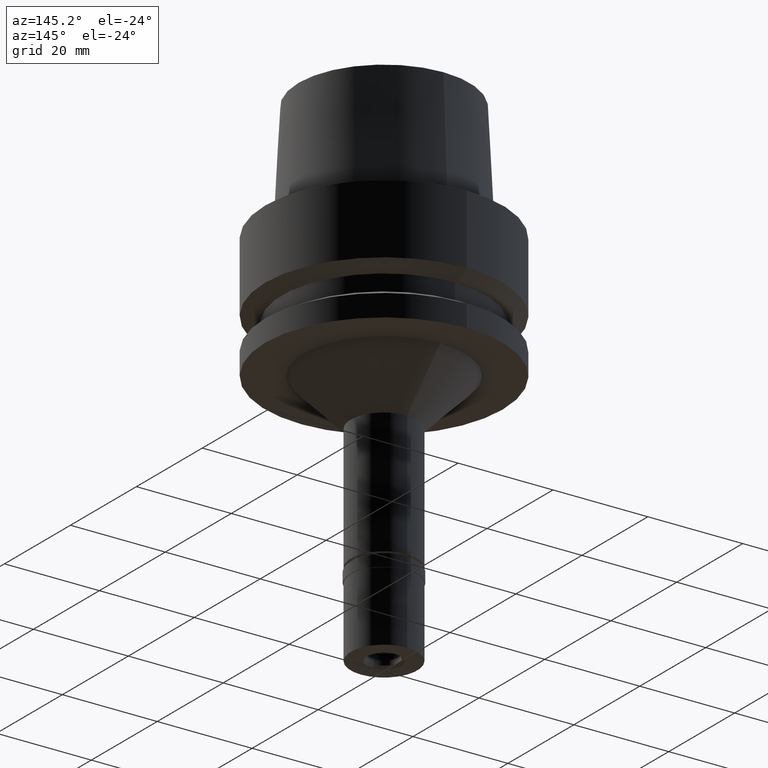
[diagram: clean part render]
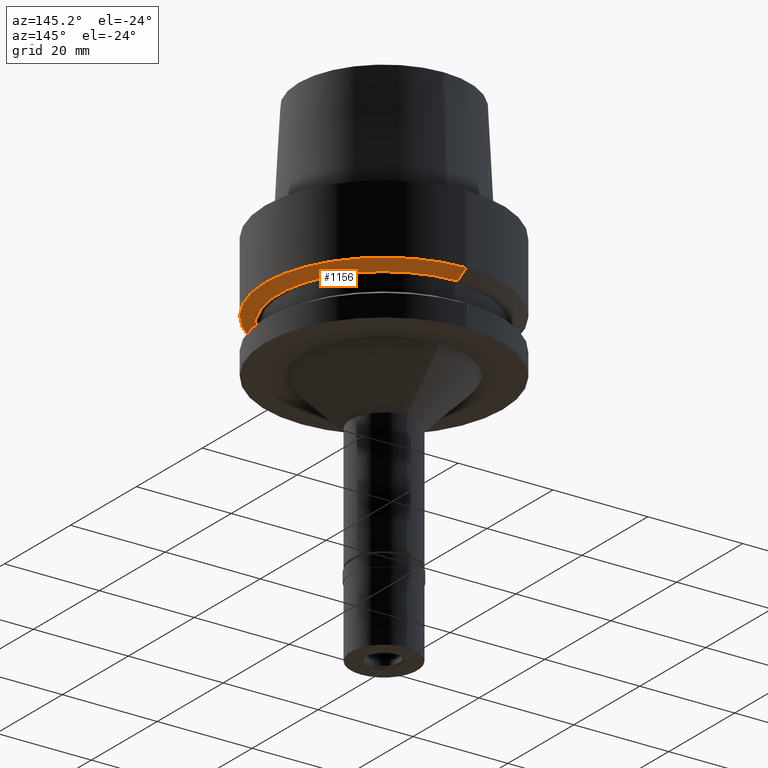
[diagram: same view with one face highlighted and labeled with its STEP entity id]
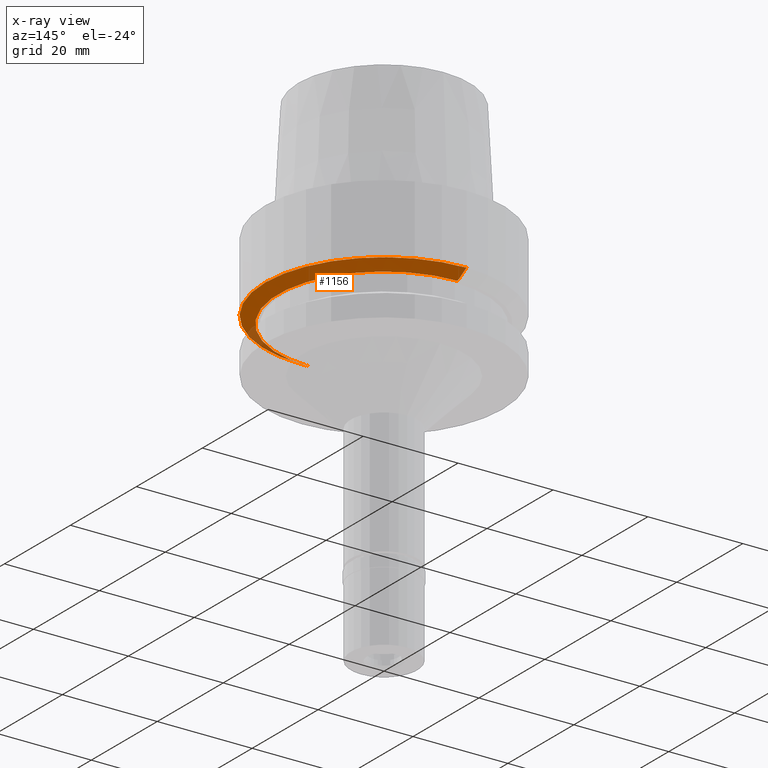
[diagram: x-ray of the same camera — body ghosted, the highlighted face saturated]
A machine part, auxiliary view. The second image highlights one B-rep face of the part: STEP entity #1156.
The next image is the same camera in x-ray: the body ghosted, the highlighted face saturated — about 6% of this face is hidden behind the body in this view.
In plain terms, the highlighted conical surface has half-angle 60.97 deg.
Its self-contained STEP definition (entity closure, byte-faithful):
#57 = VERTEX_POINT ( 'NONE', #1862 ) ;
#95 = DIRECTION ( 'NONE',  ( 0.0000000000000000000, -1.000000000000000000, 0.0000000000000000000 ) ) ;
#108 = FACE_OUTER_BOUND ( 'NONE', #1730, .T. ) ;
#130 = VECTOR ( 'NONE', #341, 1000.000000000000114 ) ;
#160 = ORIENTED_EDGE ( 'NONE', *, *, #2126, .F. ) ;
#271 = CIRCLE ( 'NONE', #1535, 25.00000000000000000 ) ;
#341 = DIRECTION ( 'NONE',  ( 0.0000000000000000000, 0.8743657415364817220, -0.4852675035764898448 ) ) ;
#382 = CARTESIAN_POINT ( 'NONE',  ( 0.0000000000000000000, 25.00000000000000000, -14.61835441913999922 ) ) ;
#385 = CARTESIAN_POINT ( 'NONE',  ( 0.0000000000000000000, 0.0000000000000000000, -14.61835441913999922 ) ) ;
#440 = AXIS2_PLACEMENT_3D ( 'NONE', #1552, #528, #95 ) ;
#528 = DIRECTION ( 'NONE',  ( 0.0000000000000000000, 0.0000000000000000000, 1.000000000000000000 ) ) ;
#554 = VERTEX_POINT ( 'NONE', #382 ) ;
#611 = LINE ( 'NONE', #2261, #1848 ) ;
#780 = CARTESIAN_POINT ( 'NONE',  ( 0.0000000000000000000, -25.00000000000000000, -14.61835441913999922 ) ) ;
#911 = AXIS2_PLACEMENT_3D ( 'NONE', #2232, #1587, #2015 ) ;
#943 = ORIENTED_EDGE ( 'NONE', *, *, #1191, .T. ) ;
#947 = EDGE_CURVE ( 'NONE', #57, #1304, #1928, .T. ) ;
#1156 = ADVANCED_FACE ( 'NONE', ( #108 ), #1531, .T. ) ;
#1188 = ORIENTED_EDGE ( 'NONE', *, *, #2207, .F. ) ;
#1191 = EDGE_CURVE ( 'NONE', #1722, #57, #1614, .T. ) ;
#1304 = VERTEX_POINT ( 'NONE', #1485 ) ;
#1485 = CARTESIAN_POINT ( 'NONE',  ( 0.0000000000000000000, 22.28529260494000042, -16.12500000000000000 ) ) ;
#1531 = CONICAL_SURFACE ( 'NONE', #911, 23.64264630247000198, 1.064127244940741290 ) ;
#1535 = AXIS2_PLACEMENT_3D ( 'NONE', #385, #1593, #1603 ) ;
#1552 = CARTESIAN_POINT ( 'NONE',  ( 0.0000000000000000000, 0.0000000000000000000, -16.12500000000000000 ) ) ;
#1587 = DIRECTION ( 'NONE',  ( 0.0000000000000000000, 0.0000000000000000000, 1.000000000000000000 ) ) ;
#1593 = DIRECTION ( 'NONE',  ( 0.0000000000000000000, 0.0000000000000000000, 1.000000000000000000 ) ) ;
#1603 = DIRECTION ( 'NONE',  ( 0.0000000000000000000, -1.000000000000000000, 0.0000000000000000000 ) ) ;
#1614 = LINE ( 'NONE', #780, #130 ) ;
#1722 = VERTEX_POINT ( 'NONE', #1759 ) ;
#1730 = EDGE_LOOP ( 'NONE', ( #160, #943, #1749, #1188 ) ) ;
#1749 = ORIENTED_EDGE ( 'NONE', *, *, #947, .T. ) ;
#1759 = CARTESIAN_POINT ( 'NONE',  ( 0.0000000000000000000, -25.00000000000000000, -14.61835441913999922 ) ) ;
#1848 = VECTOR ( 'NONE', #2081, 1000.000000000000114 ) ;
#1862 = CARTESIAN_POINT ( 'NONE',  ( 0.0000000000000000000, -22.28529260494000042, -16.12500000000000000 ) ) ;
#1928 = CIRCLE ( 'NONE', #440, 22.28529260494000042 ) ;
#2015 = DIRECTION ( 'NONE',  ( 0.0000000000000000000, 1.000000000000000000, 0.0000000000000000000 ) ) ;
#2081 = DIRECTION ( 'NONE',  ( 0.0000000000000000000, -0.8743657415364817220, -0.4852675035764898448 ) ) ;
#2126 = EDGE_CURVE ( 'NONE', #1722, #554, #271, .T. ) ;
#2207 = EDGE_CURVE ( 'NONE', #554, #1304, #611, .T. ) ;
#2232 = CARTESIAN_POINT ( 'NONE',  ( 0.0000000000000000000, 0.0000000000000000000, -15.37167720956999872 ) ) ;
#2261 = CARTESIAN_POINT ( 'NONE',  ( 0.0000000000000000000, 25.00000000000000000, -14.61835441913999922 ) ) ;